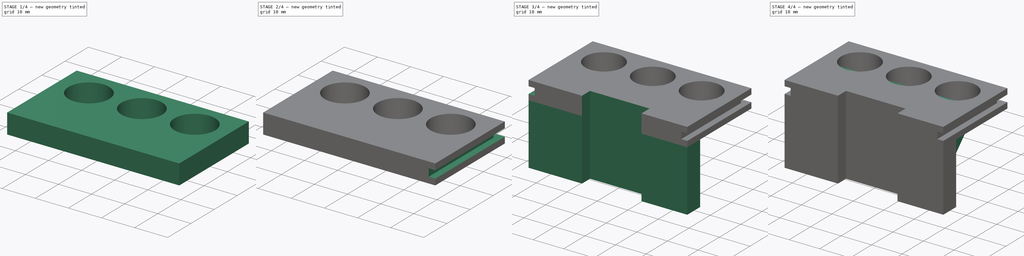
[diagram: build sequence overview — one tinted view per stage of 4, left to right]
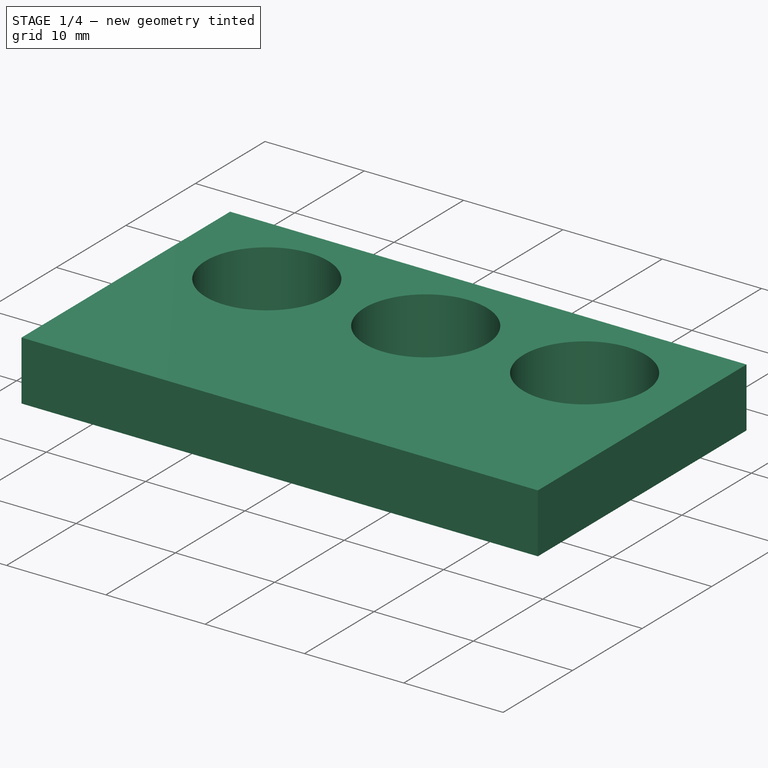
[diagram: stage 1 of 4 — iso view after this stage's code; geometry added in this stage tinted green]
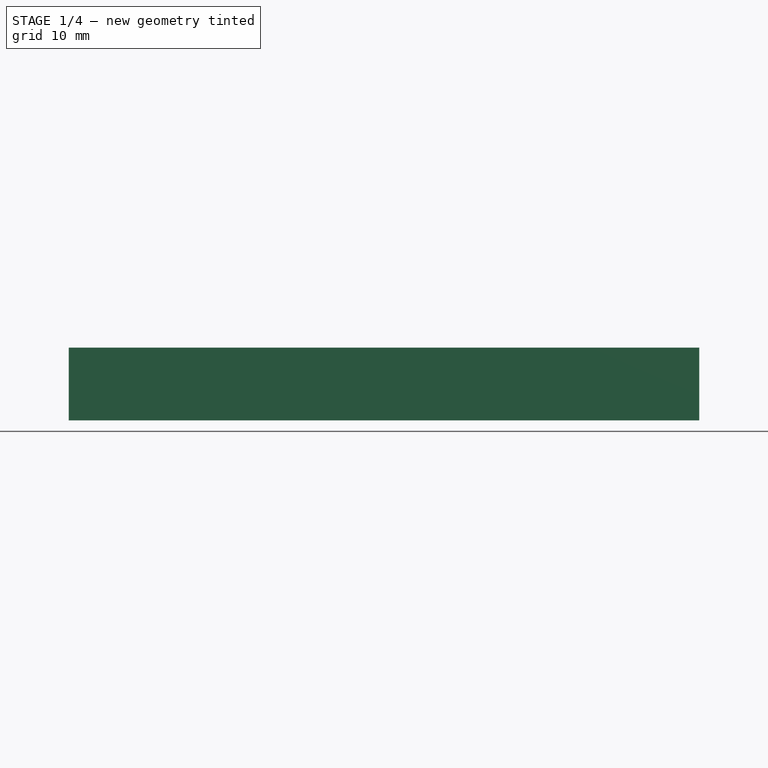
[diagram: stage 1 of 4 — front view after this stage's code; geometry added in this stage tinted green]
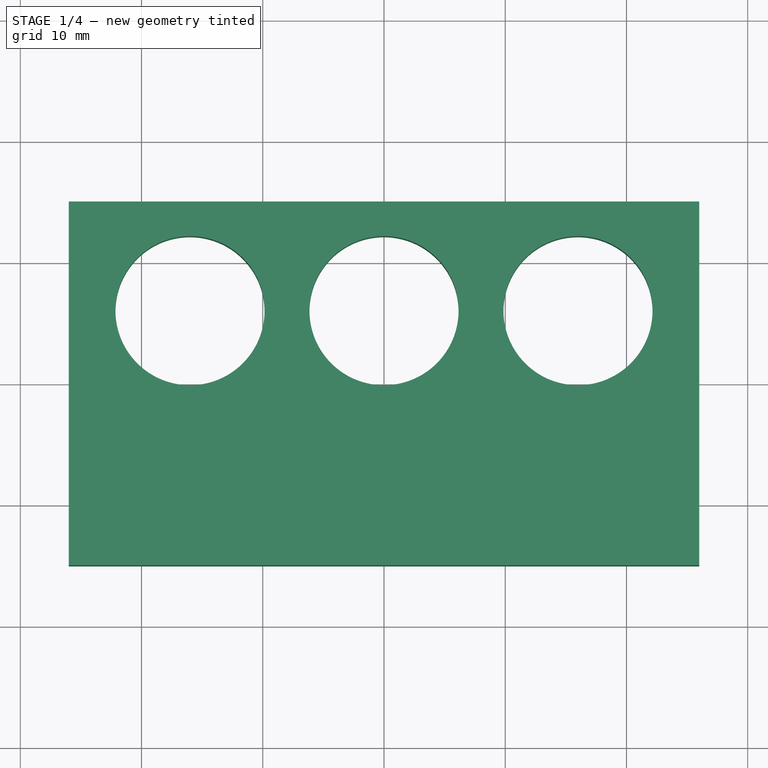
[diagram: stage 1 of 4 — top view after this stage's code; geometry added in this stage tinted green]
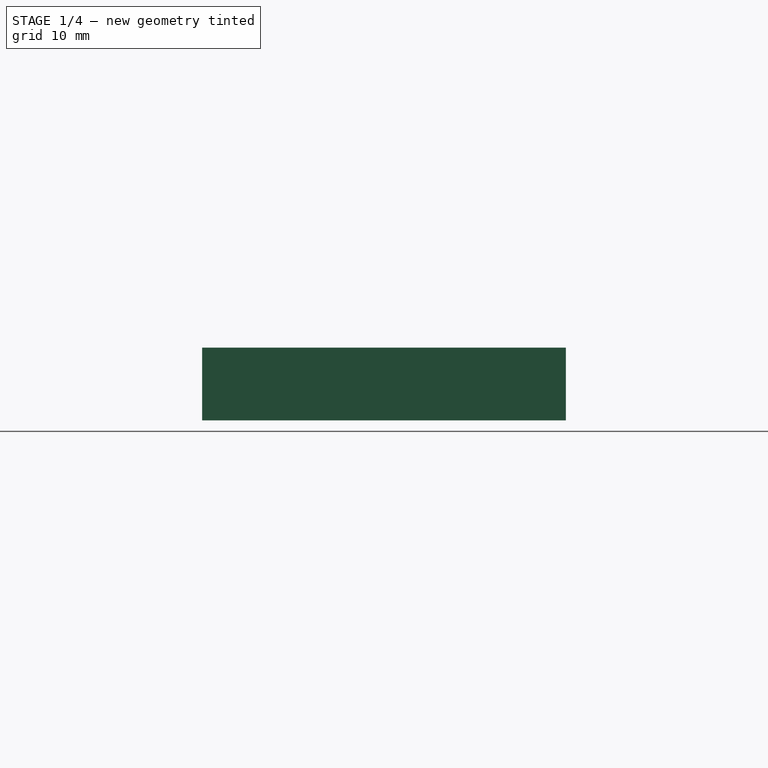
[diagram: stage 1 of 4 — right view after this stage's code; geometry added in this stage tinted green]
FCSTD DOCUMENT  (FreeCAD 0.19R19180 (Git))
Label: fuse_holder_bracket
License: All rights reserved
LicenseURL: http://en.wikipedia.org/wiki/All_rights_reserved
objects: Sketcher::SketchObject×8, PartDesign::Pocket×5, PartDesign::Pad×3, PartDesign::Chamfer×1, PartDesign::Body×1
note: 26 computed .brp shape members not serialized (recipe doc carries the construction recipe); baked Part::Feature solids carry a one-line shape summary decoded from their .brp

FEATURE [Sketcher::SketchObject] Sketch
  MapMode = 5
  Support = -> [XY_Plane]
  sketch-geometry (4):
    g0: LineSegment StartX=-26 StartY=15 StartZ=0 EndX=26 EndY=15 EndZ=0
    g1: LineSegment StartX=26 StartY=15 StartZ=0 EndX=26 EndY=-15 EndZ=0
    g2: LineSegment StartX=26 StartY=-15 StartZ=0 EndX=-26 EndY=-15 EndZ=0
    g3: LineSegment StartX=-26 StartY=-15 StartZ=0 EndX=-26 EndY=15 EndZ=0
  constraints (12):
    c: Coincident(g0,g1)
    c: Coincident(g1,g2)
    c: Coincident(g2,g3)
    c: Coincident(g3,g0)
    c: Horizontal(g0)
    c: Horizontal(g2)
    c: Vertical(g1)
    c: Vertical(g3)
    c: DistanceX(g0,g0) = 52
    c: DistanceY(g1,g1) = 30
    c: DistanceY(g-1,g0) = 15
    c: DistanceX(g0,g-1) = 26
FEATURE [PartDesign::Pad] Pad
  Length = 6
  Length2 = 100
  Profile = -> Sketch
  Type = 0
FEATURE [Sketcher::SketchObject] Sketch001
  ExternalGeometry = -> [Pad]
  MapMode = 5
  Placement = pos=(0,0,6) rot=(0,0,1;0rad)
  Support = -> [Pad]
  sketch-geometry (3):
    g0: Circle CenterX=-16 CenterY=6 CenterZ=0 NormalX=0 NormalY=0 NormalZ=1 AngleXU=0 Radius=6.15
    g1: Circle CenterX=0 CenterY=6 CenterZ=0 NormalX=0 NormalY=0 NormalZ=1 AngleXU=0 Radius=6.15
    g2: Circle CenterX=16 CenterY=6 CenterZ=0 NormalX=0 NormalY=0 NormalZ=1 AngleXU=0 Radius=6.15
  constraints (9):
    c: PointOnObject(g1,g-2)
    c: Diameter(g1) = 12.3
    c: Equal(g1,g2)
    c: Equal(g1,g0)
    c: DistanceY(g1,g-3) = 9
    c: Horizontal(g2,g1)
    c: Horizontal(g1,g0)
    c: DistanceX(g1,g2) = 16
    c: DistanceX(g0,g1) = 16
FEATURE [PartDesign::Pocket] Pocket
  BaseFeature = -> Pad
  Length = 6
  Length2 = 100
  Profile = -> Sketch001
  Type = 0
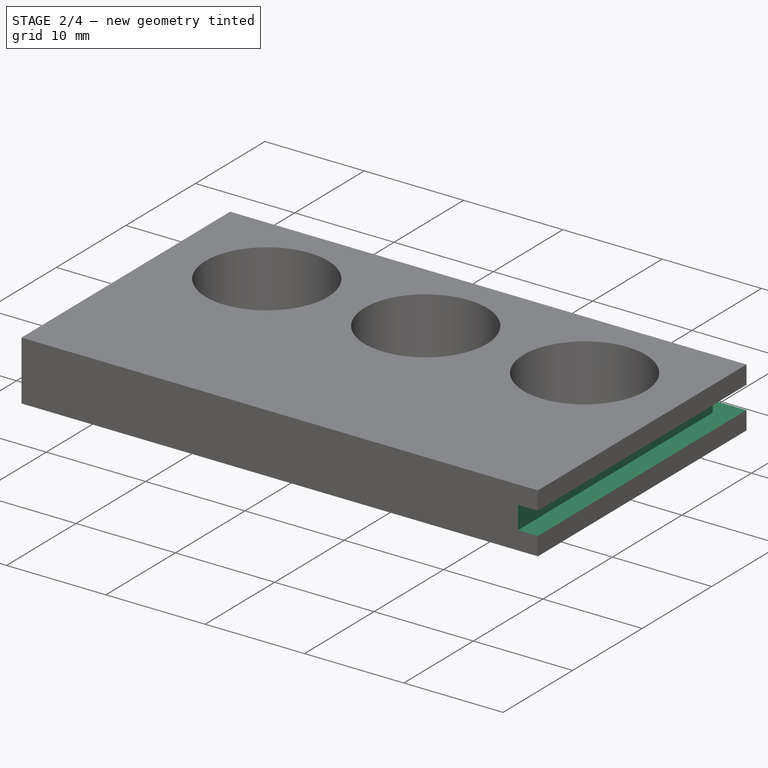
[diagram: stage 2 of 4 — iso view after this stage's code; geometry added in this stage tinted green]
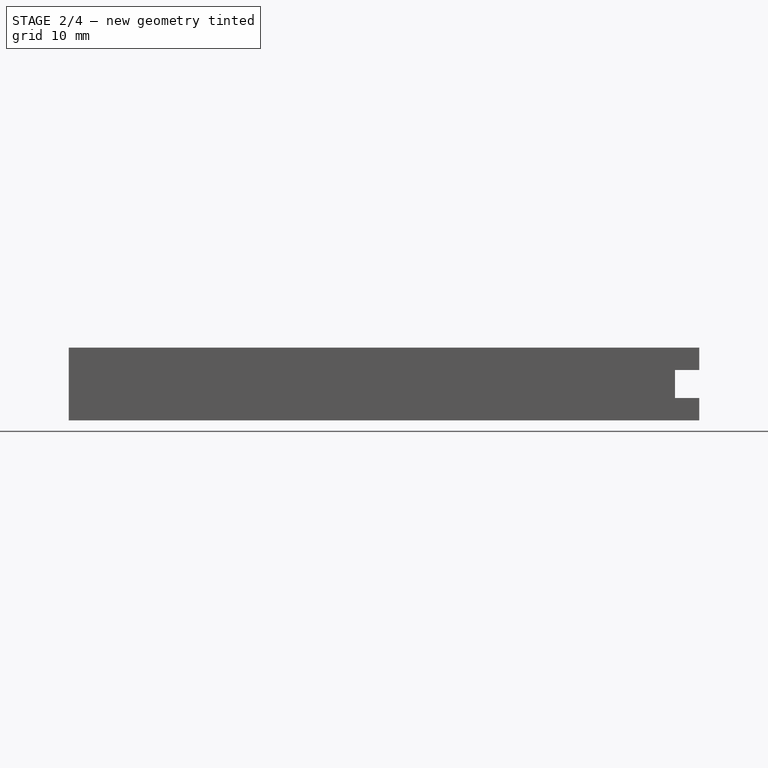
[diagram: stage 2 of 4 — front view after this stage's code; geometry added in this stage tinted green]
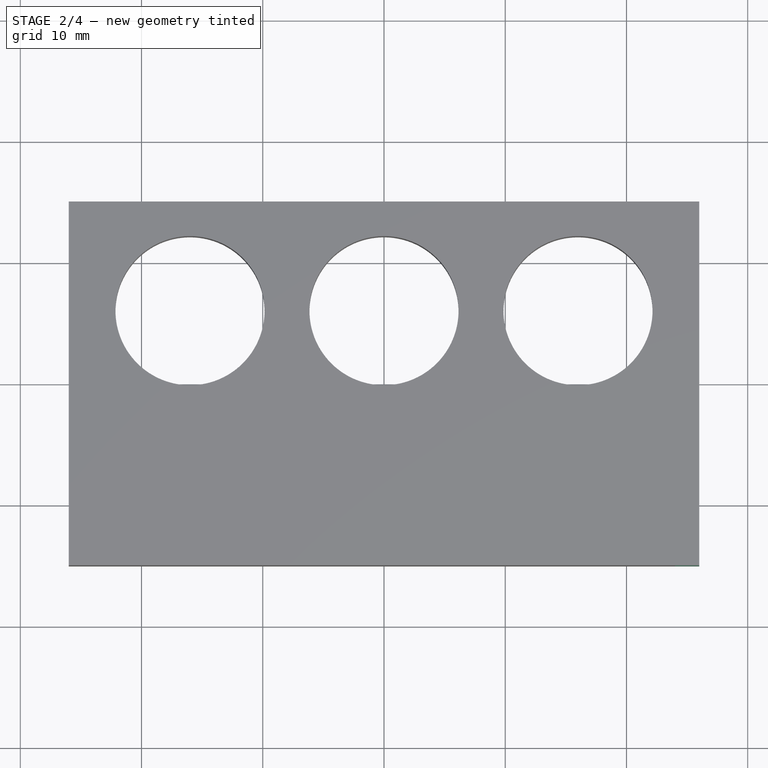
[diagram: stage 2 of 4 — top view after this stage's code; geometry added in this stage tinted green]
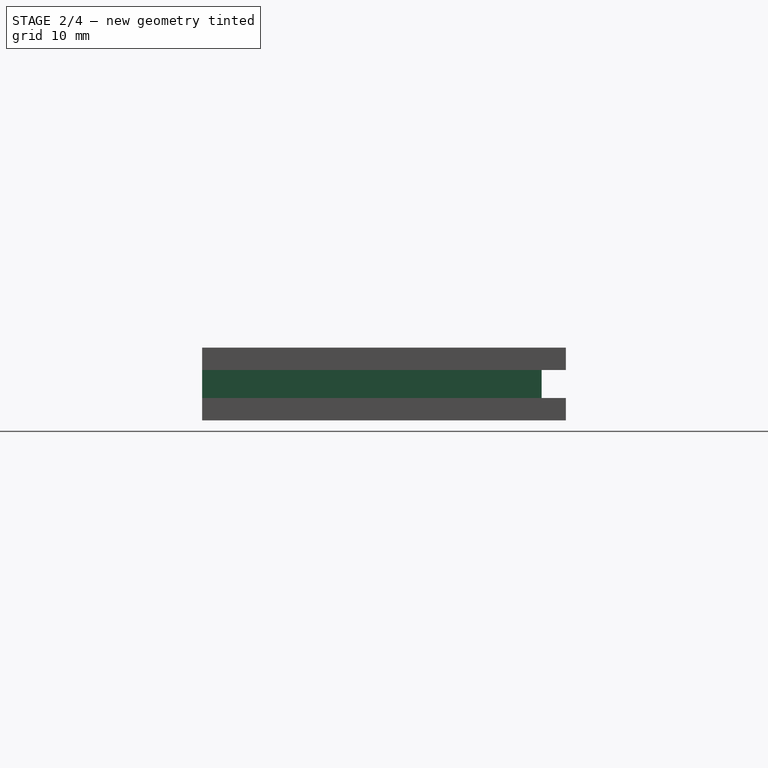
[diagram: stage 2 of 4 — right view after this stage's code; geometry added in this stage tinted green]
FEATURE [Sketcher::SketchObject] Sketch002
  ExternalGeometry = -> [Pocket]
  MapMode = 5
  Placement = pos=(26,0,0) rot=(0.57735,0.57735,0.57735;2.0944rad)
  Support = -> [Pocket]
  sketch-geometry (4):
    g0: LineSegment StartX=-15 StartY=4.15 StartZ=0 EndX=15 EndY=4.15 EndZ=0
    g1: LineSegment StartX=15 StartY=4.15 StartZ=0 EndX=15 EndY=1.85 EndZ=0
    g2: LineSegment StartX=15 StartY=1.85 StartZ=0 EndX=-15 EndY=1.85 EndZ=0
    g3: LineSegment StartX=-15 StartY=1.85 StartZ=0 EndX=-15 EndY=4.15 EndZ=0
  constraints (12):
    c: Coincident(g0,g1)
    c: Coincident(g1,g2)
    c: Coincident(g2,g3)
    c: Coincident(g3,g0)
    c: Horizontal(g0)
    c: Horizontal(g2)
    c: Vertical(g1)
    c: Vertical(g3)
    c: DistanceY(g1,g1) = 2.3
    c: Vertical(g-3,g0)
    c: Vertical(g0,g-4)
    c: DistanceY(g0,g-3) = 1.85
FEATURE [PartDesign::Pocket] Pocket001
  BaseFeature = -> Pocket
  Length = 2
  Length2 = 100
  Profile = -> Sketch002
  Type = 0
FEATURE [Sketcher::SketchObject] Sketch003
  ExternalGeometry = -> [Pocket001]
  MapMode = 5
  Placement = pos=(0,15,0) rot=(0,0.707107,0.707107;3.14159rad)
  Support = -> [Pocket001]
  sketch-geometry (4):
    g0: LineSegment StartX=-26 StartY=4.15 StartZ=0 EndX=26 EndY=4.15 EndZ=0
    g1: LineSegment StartX=26 StartY=4.15 StartZ=0 EndX=26 EndY=1.85 EndZ=0
    g2: LineSegment StartX=26 StartY=1.85 StartZ=0 EndX=-26 EndY=1.85 EndZ=0
    g3: LineSegment StartX=-26 StartY=1.85 StartZ=0 EndX=-26 EndY=4.15 EndZ=0
  constraints (12):
    c: Coincident(g0,g1)
    c: Coincident(g1,g2)
    c: Coincident(g2,g3)
    c: Coincident(g3,g0)
    c: Horizontal(g0)
    c: Horizontal(g2)
    c: Vertical(g1)
    c: Vertical(g3)
    c: Vertical(g0,g-4)
    c: Vertical(g0,g-3)
    c: DistanceY(g1,g1) = 2.3
    c: DistanceY(g0,g-3) = 1.85
FEATURE [PartDesign::Pocket] Pocket002
  BaseFeature = -> Pocket001
  Length = 2
  Length2 = 100
  Profile = -> Sketch003
  Type = 0
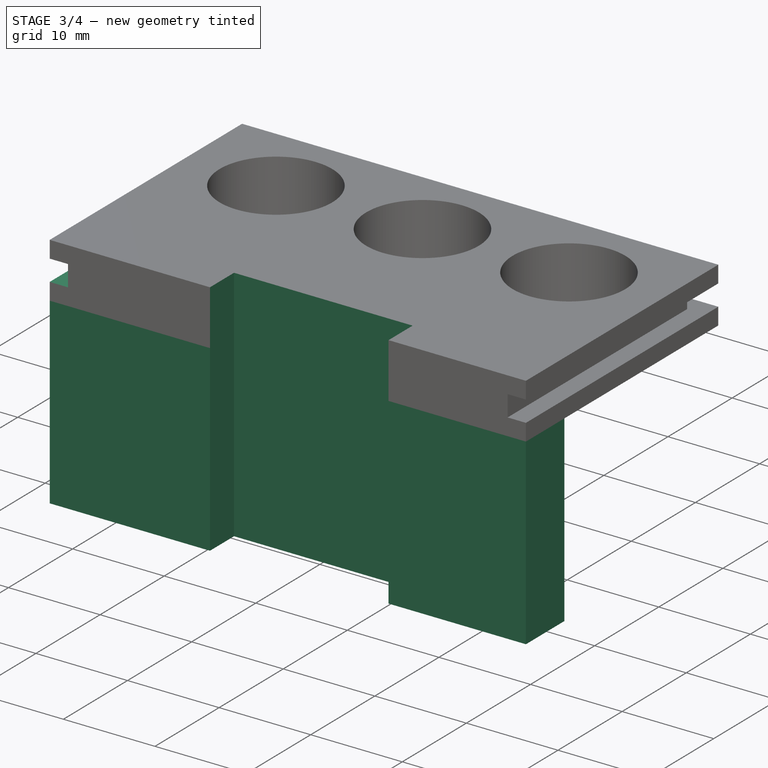
[diagram: stage 3 of 4 — iso view after this stage's code; geometry added in this stage tinted green]
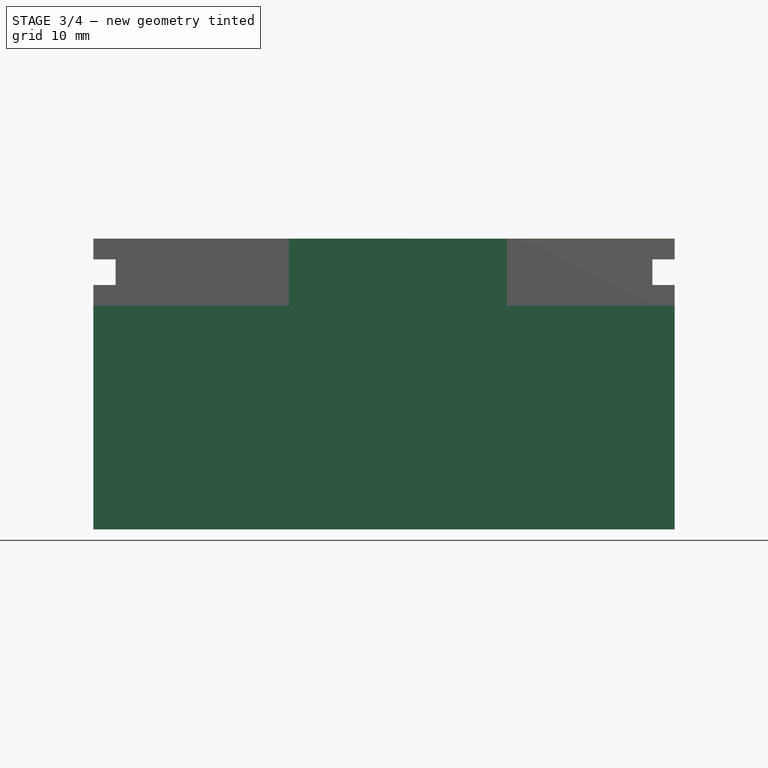
[diagram: stage 3 of 4 — front view after this stage's code; geometry added in this stage tinted green]
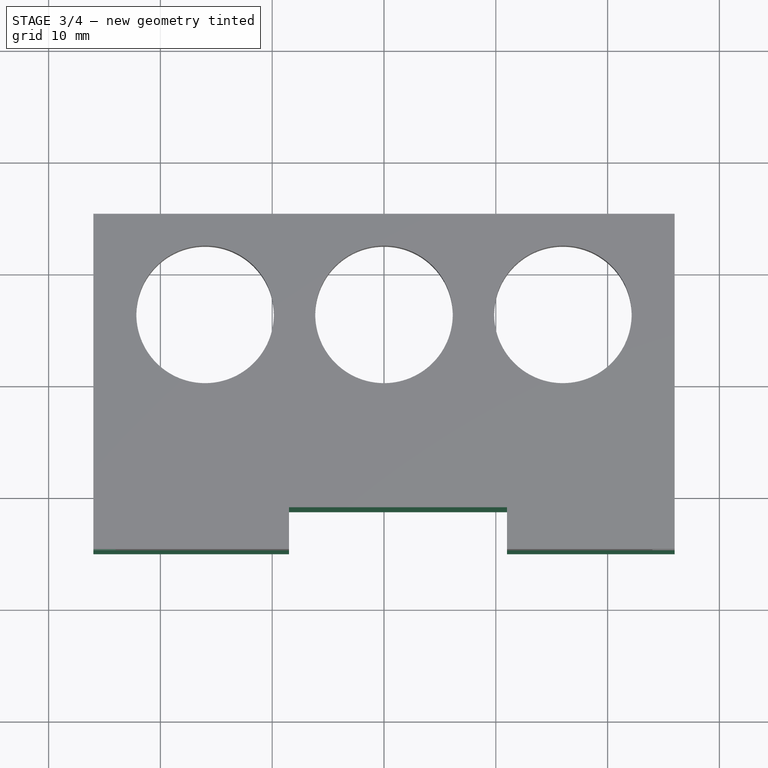
[diagram: stage 3 of 4 — top view after this stage's code; geometry added in this stage tinted green]
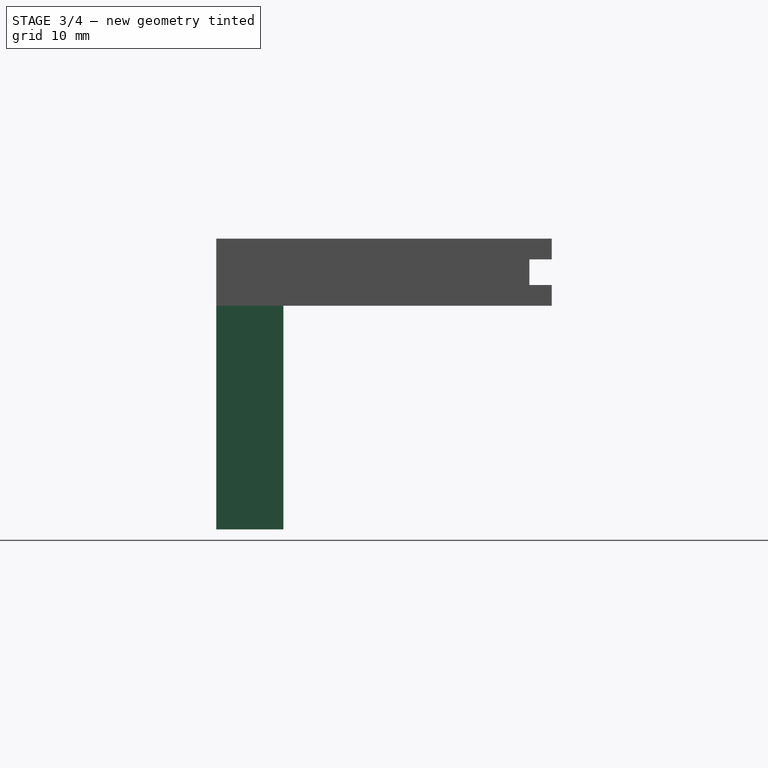
[diagram: stage 3 of 4 — right view after this stage's code; geometry added in this stage tinted green]
FEATURE [Sketcher::SketchObject] Sketch004
  ExternalGeometry = -> [Pocket002]
  MapMode = 5
  Placement = pos=(-26,0,0) rot=(0.57735,-0.57735,-0.57735;2.0944rad)
  Support = -> [Pocket002]
  sketch-geometry (4):
    g0: LineSegment StartX=-15 StartY=4.15 StartZ=0 EndX=15 EndY=4.15 EndZ=0
    g1: LineSegment StartX=15 StartY=4.15 StartZ=0 EndX=15 EndY=1.85 EndZ=0
    g2: LineSegment StartX=15 StartY=1.85 StartZ=0 EndX=-15 EndY=1.85 EndZ=0
    g3: LineSegment StartX=-15 StartY=1.85 StartZ=0 EndX=-15 EndY=4.15 EndZ=0
  constraints (12):
    c: Coincident(g0,g1)
    c: Coincident(g1,g2)
    c: Coincident(g2,g3)
    c: Coincident(g3,g0)
    c: Horizontal(g0)
    c: Horizontal(g2)
    c: Vertical(g1)
    c: Vertical(g3)
    c: DistanceY(g1,g1) = 2.3
    c: Vertical(g0,g-3)
    c: Vertical(g0,g-4)
    c: DistanceY(g0,g-3) = 1.85
FEATURE [PartDesign::Pocket] Pocket003
  BaseFeature = -> Pocket002
  Length = 2
  Length2 = 100
  Profile = -> Sketch004
  Type = 0
FEATURE [Sketcher::SketchObject] Sketch005
  ExternalGeometry = -> [Pocket003]
  MapMode = 5
  Placement = pos=(0,0,0) rot=(1,0,0;3.14159rad)
  Support = -> [Pocket003]
  sketch-geometry (4):
    g0: LineSegment StartX=-26 StartY=15 StartZ=0 EndX=26 EndY=15 EndZ=0
    g1: LineSegment StartX=26 StartY=15 StartZ=0 EndX=26 EndY=9 EndZ=0
    g2: LineSegment StartX=26 StartY=9 StartZ=0 EndX=-26 EndY=9 EndZ=0
    g3: LineSegment StartX=-26 StartY=9 StartZ=0 EndX=-26 EndY=15 EndZ=0
  constraints (12):
    c: Coincident(g0,g1)
    c: Coincident(g1,g2)
    c: Coincident(g2,g3)
    c: Coincident(g3,g0)
    c: Horizontal(g0)
    c: Horizontal(g2)
    c: Vertical(g1)
    c: Vertical(g3)
    c: Vertical(g0,g-3)
    c: Vertical(g0,g-4)
    c: DistanceY(g0,g-3) = 0
    c: DistanceY(g1,g1) = 6
FEATURE [PartDesign::Pad] Pad001
  BaseFeature = -> Pocket003
  Length = 20
  Length2 = 100
  Profile = -> Sketch005
  Type = 0
FEATURE [Sketcher::SketchObject] Sketch006
  ExternalGeometry = -> [Pad001]
  MapMode = 5
  Placement = pos=(0,0,6) rot=(0,0,1;0rad)
  Support = -> [Pad001]
  sketch-geometry (4):
    g0: LineSegment StartX=-8.5 StartY=-11.25 StartZ=0 EndX=11 EndY=-11.25 EndZ=0
    g1: LineSegment StartX=11 StartY=-11.25 StartZ=0 EndX=11 EndY=-15 EndZ=0
    g2: LineSegment StartX=11 StartY=-15 StartZ=0 EndX=-8.5 EndY=-15 EndZ=0
    g3: LineSegment StartX=-8.5 StartY=-15 StartZ=0 EndX=-8.5 EndY=-11.25 EndZ=0
  constraints (12):
    c: Coincident(g0,g1)
    c: Coincident(g1,g2)
    c: Coincident(g2,g3)
    c: Coincident(g3,g0)
    c: Horizontal(g0)
    c: Horizontal(g2)
    c: Vertical(g1)
    c: Vertical(g3)
    c: Horizontal(g1,g-3)
    c: DistanceY(g1,g1) = 3.75
    c: DistanceX(g0,g0) = 19.5
    c: DistanceX(g1,g-3) = 15
FEATURE [PartDesign::Pocket] Pocket004
  BaseFeature = -> Pad001
  Length = 26
  Length2 = 100
  Profile = -> Sketch006
  Type = 0
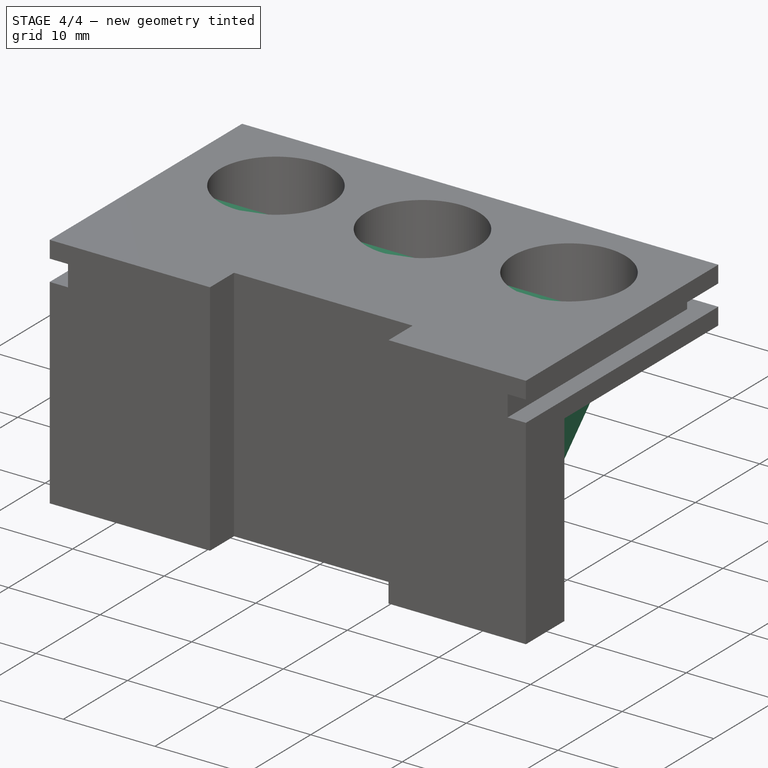
[diagram: stage 4 of 4 — iso view after this stage's code; geometry added in this stage tinted green]
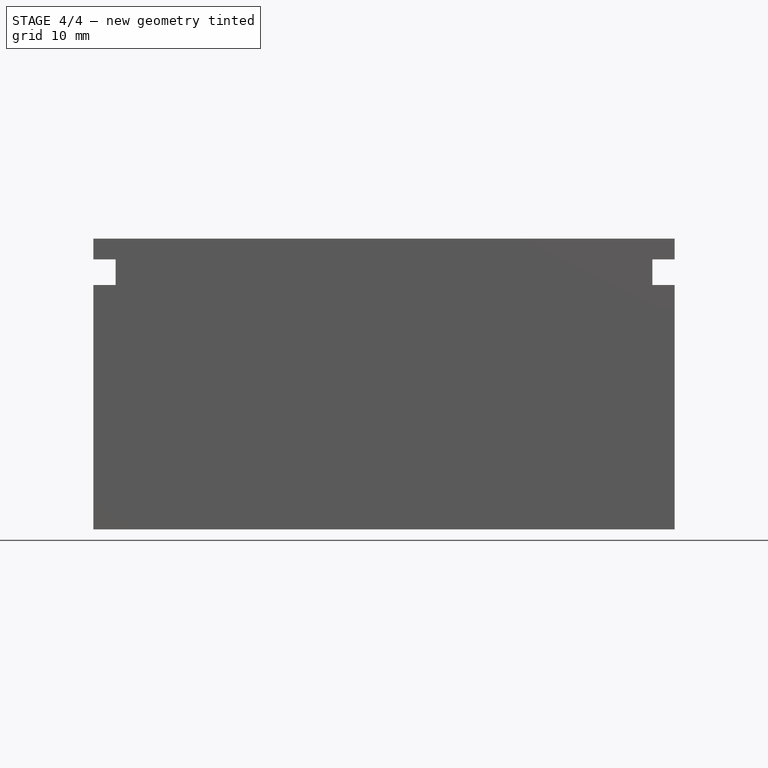
[diagram: stage 4 of 4 — front view after this stage's code; geometry added in this stage tinted green]
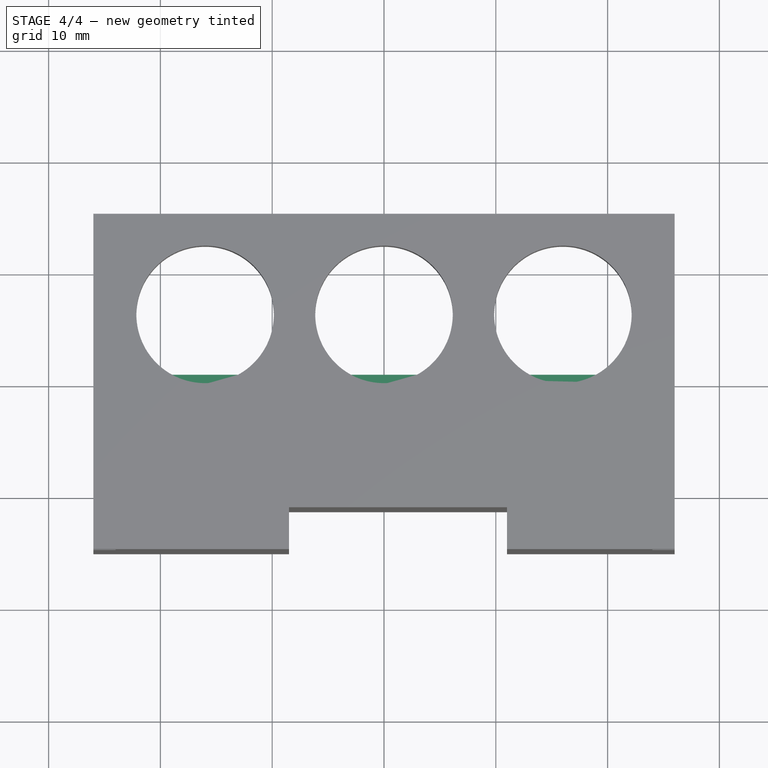
[diagram: stage 4 of 4 — top view after this stage's code; geometry added in this stage tinted green]
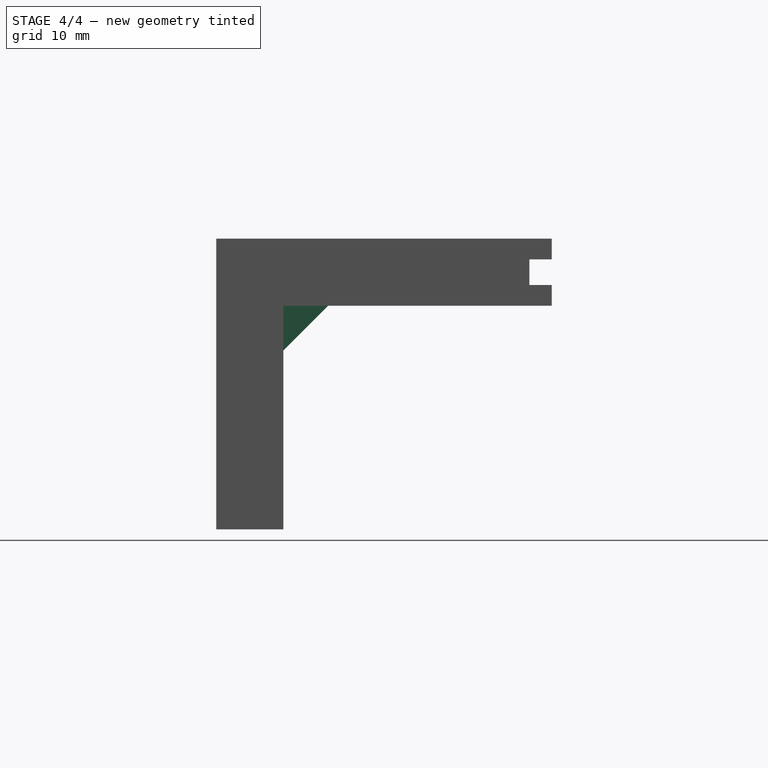
[diagram: stage 4 of 4 — right view after this stage's code; geometry added in this stage tinted green]
FEATURE [PartDesign::Chamfer] Chamfer
  Base = -> Pocket004 [Edge8]
  BaseFeature = -> Pocket004
  Size = 4
FEATURE [Sketcher::SketchObject] Sketch007
  ExternalGeometry = -> [Chamfer]
  MapMode = 5
  Placement = pos=(0,0,6) rot=(0,0,1;0rad)
  Support = -> [Chamfer]
  sketch-geometry (4):
    g0: LineSegment StartX=-22.5 StartY=0.6 StartZ=0 EndX=22.5 EndY=0.6 EndZ=0
    g1: LineSegment StartX=22.5 StartY=0.6 StartZ=0 EndX=22.5 EndY=-1.4 EndZ=0
    g2: LineSegment StartX=22.5 StartY=-1.4 StartZ=0 EndX=-22.5 EndY=-1.4 EndZ=0
    g3: LineSegment StartX=-22.5 StartY=-1.4 StartZ=0 EndX=-22.5 EndY=0.6 EndZ=0
  constraints (12):
    c: Coincident(g0,g1)
    c: Coincident(g1,g2)
    c: Coincident(g2,g3)
    c: Coincident(g3,g0)
    c: Horizontal(g0)
    c: Horizontal(g2)
    c: Vertical(g1)
    c: Vertical(g3)
    c: DistanceY(g1,g1) = 2
    c: DistanceX(g0,g0) = 45
    c: DistanceX(g-1,g0) = 22.5
    c: DistanceY(g0,g-3) = 14.4
FEATURE [PartDesign::Pad] Pad002
  BaseFeature = -> Chamfer
  Length = 6
  Length2 = 100
  Profile = -> Sketch007
  Reversed = true
  Type = 0
FEATURE [PartDesign::Body] Body
  Group = -> [Sketch,Pad,Sketch001,Pocket,Sketch002,Pocket001,Sketch003,Pocket002,Sketch004,Pocket003,Sketch005,Pad001,Sketch006,Pocket004,Chamfer,Sketch007,Pad002]
  Origin = -> Origin
  Tip = -> Pad002
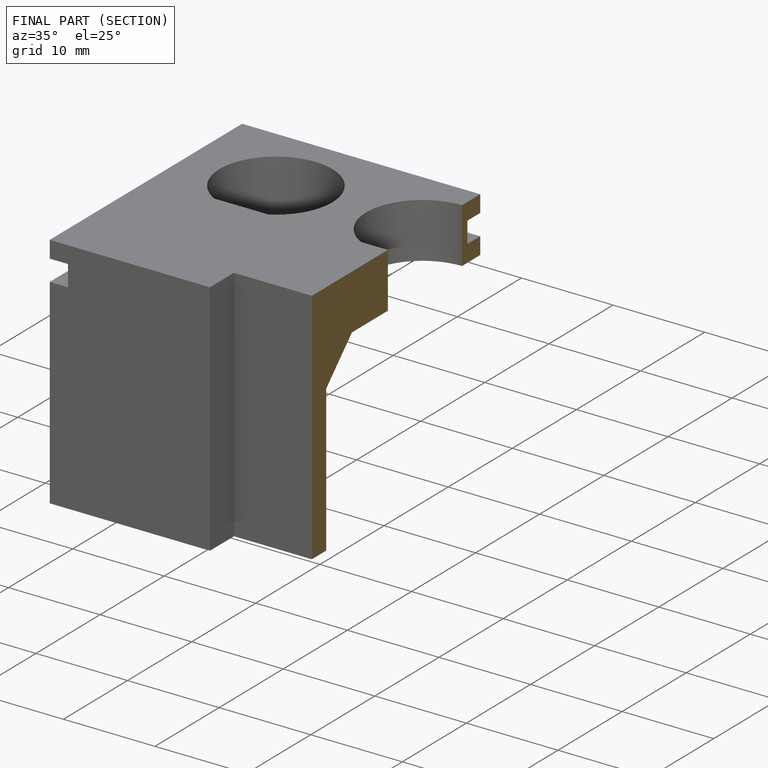
[diagram: finished part — half-section view (interior)]
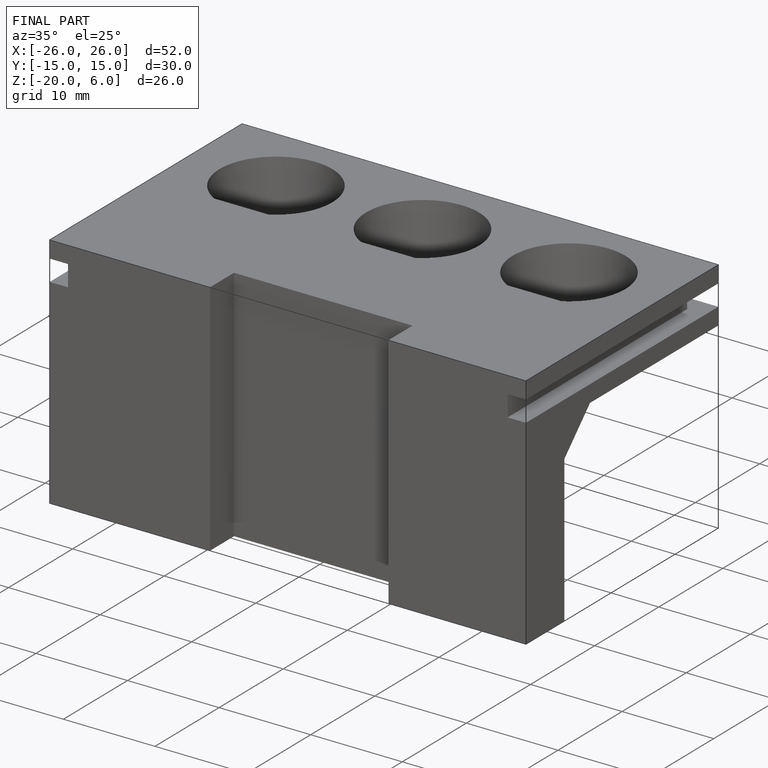
[diagram: finished part — iso view with bounding-box wireframe]
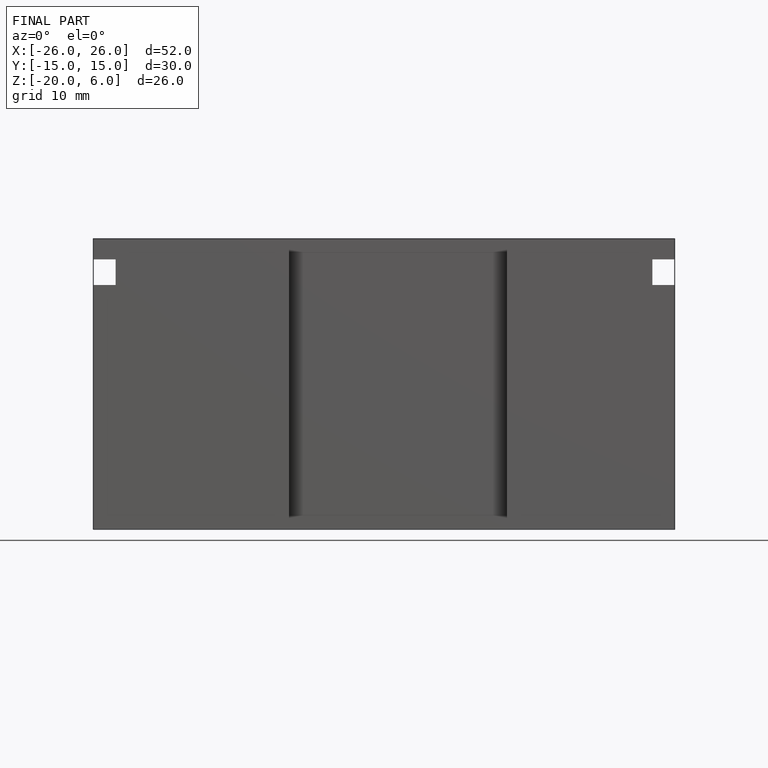
[diagram: finished part — front view with bounding-box wireframe]
